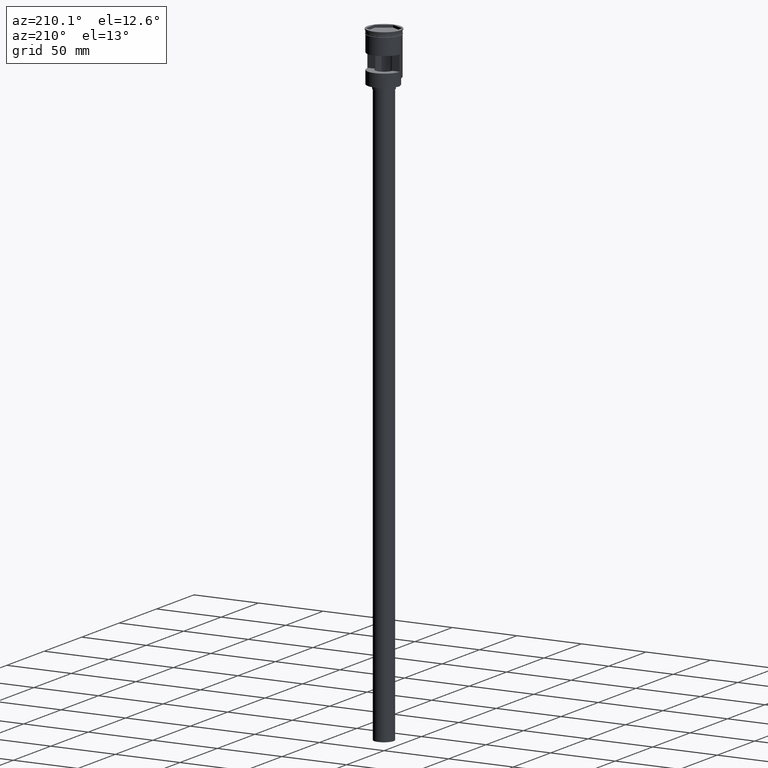
[diagram: clean part render]
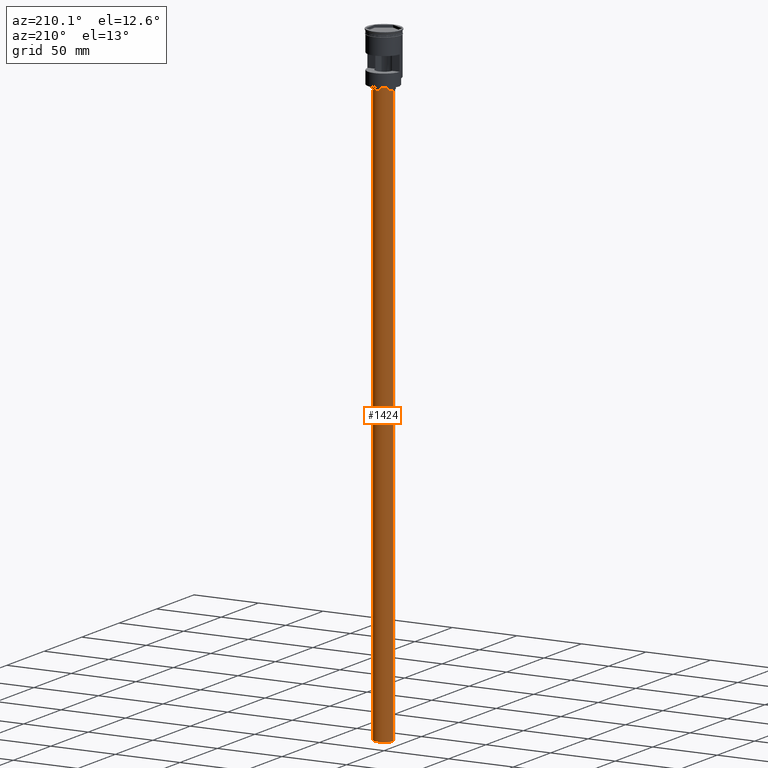
[diagram: same view with one face highlighted and labeled with its STEP entity id]
A machine part, auxiliary view. The second image highlights one B-rep face of the part: STEP entity #1424.
In plain terms, the highlighted cylindrical surface (edge-blend (fillet) strip) has radius 7.5 mm, axis along (-0, -0, 1).
Its self-contained STEP definition (entity closure, byte-faithful):
#1 = DIRECTION ( 'NONE',  ( -0.000000000000000000, -0.000000000000000000, 1.000000000000000000 ) ) ;
#46 = ORIENTED_EDGE ( 'NONE', *, *, #1291, .T. ) ;
#105 = VERTEX_POINT ( 'NONE', #734 ) ;
#148 = CARTESIAN_POINT ( 'NONE',  ( 7.500000000000000000, 0.000000000000000000, -41.50000000000000000 ) ) ;
#208 = EDGE_LOOP ( 'NONE', ( #1045, #1061, #46, #842 ) ) ;
#218 = EDGE_CURVE ( 'NONE', #105, #1086, #1481, .T. ) ;
#223 = CARTESIAN_POINT ( 'NONE',  ( 0.000000000000000000, 0.000000000000000000, -488.5000000000000000 ) ) ;
#256 = AXIS2_PLACEMENT_3D ( 'NONE', #1567, #673, #948 ) ;
#346 = VERTEX_POINT ( 'NONE', #148 ) ;
#360 = VECTOR ( 'NONE', #935, 1000.000000000000000 ) ;
#487 = CYLINDRICAL_SURFACE ( 'NONE', #639, 7.500000000000000000 ) ;
#605 = CARTESIAN_POINT ( 'NONE',  ( -7.500000000000000000, 9.184850993605147944E-16, -488.5000000000000000 ) ) ;
#606 = FACE_OUTER_BOUND ( 'NONE', #208, .T. ) ;
#619 = EDGE_CURVE ( 'NONE', #105, #1051, #1430, .T. ) ;
#639 = AXIS2_PLACEMENT_3D ( 'NONE', #223, #1, #1354 ) ;
#641 = CARTESIAN_POINT ( 'NONE',  ( 0.000000000000000000, 0.000000000000000000, -41.50000000000000000 ) ) ;
#673 = DIRECTION ( 'NONE',  ( 0.000000000000000000, 0.000000000000000000, -1.000000000000000000 ) ) ;
#734 = CARTESIAN_POINT ( 'NONE',  ( -7.500000000000000000, 9.184850993605147944E-16, -488.5000000000000000 ) ) ;
#764 = CARTESIAN_POINT ( 'NONE',  ( 7.500000000000000000, 0.000000000000000000, -488.5000000000000000 ) ) ;
#779 = CIRCLE ( 'NONE', #1435, 7.500000000000000000 ) ;
#842 = ORIENTED_EDGE ( 'NONE', *, *, #1243, .F. ) ;
#935 = DIRECTION ( 'NONE',  ( -0.000000000000000000, -0.000000000000000000, 1.000000000000000000 ) ) ;
#948 = DIRECTION ( 'NONE',  ( -1.000000000000000000, 0.000000000000000000, 0.000000000000000000 ) ) ;
#992 = DIRECTION ( 'NONE',  ( -0.000000000000000000, -0.000000000000000000, 1.000000000000000000 ) ) ;
#997 = LINE ( 'NONE', #764, #360 ) ;
#1045 = ORIENTED_EDGE ( 'NONE', *, *, #619, .F. ) ;
#1051 = VERTEX_POINT ( 'NONE', #1530 ) ;
#1061 = ORIENTED_EDGE ( 'NONE', *, *, #218, .T. ) ;
#1086 = VERTEX_POINT ( 'NONE', #1329 ) ;
#1150 = DIRECTION ( 'NONE',  ( 0.000000000000000000, 0.000000000000000000, -1.000000000000000000 ) ) ;
#1243 = EDGE_CURVE ( 'NONE', #1051, #346, #997, .T. ) ;
#1291 = EDGE_CURVE ( 'NONE', #1086, #346, #779, .T. ) ;
#1329 = CARTESIAN_POINT ( 'NONE',  ( -7.500000000000000000, 9.184850993605147944E-16, -41.50000000000000000 ) ) ;
#1354 = DIRECTION ( 'NONE',  ( 1.000000000000000000, 0.000000000000000000, 0.000000000000000000 ) ) ;
#1424 = ADVANCED_FACE ( 'NONE', ( #606 ), #487, .T. ) ;
#1430 = CIRCLE ( 'NONE', #256, 7.500000000000000000 ) ;
#1435 = AXIS2_PLACEMENT_3D ( 'NONE', #641, #1150, #1524 ) ;
#1481 = LINE ( 'NONE', #605, #1533 ) ;
#1524 = DIRECTION ( 'NONE',  ( -1.000000000000000000, 0.000000000000000000, 0.000000000000000000 ) ) ;
#1530 = CARTESIAN_POINT ( 'NONE',  ( 7.500000000000000000, 0.000000000000000000, -488.5000000000000000 ) ) ;
#1533 = VECTOR ( 'NONE', #992, 1000.000000000000000 ) ;
#1567 = CARTESIAN_POINT ( 'NONE',  ( 0.000000000000000000, 0.000000000000000000, -488.5000000000000000 ) ) ;